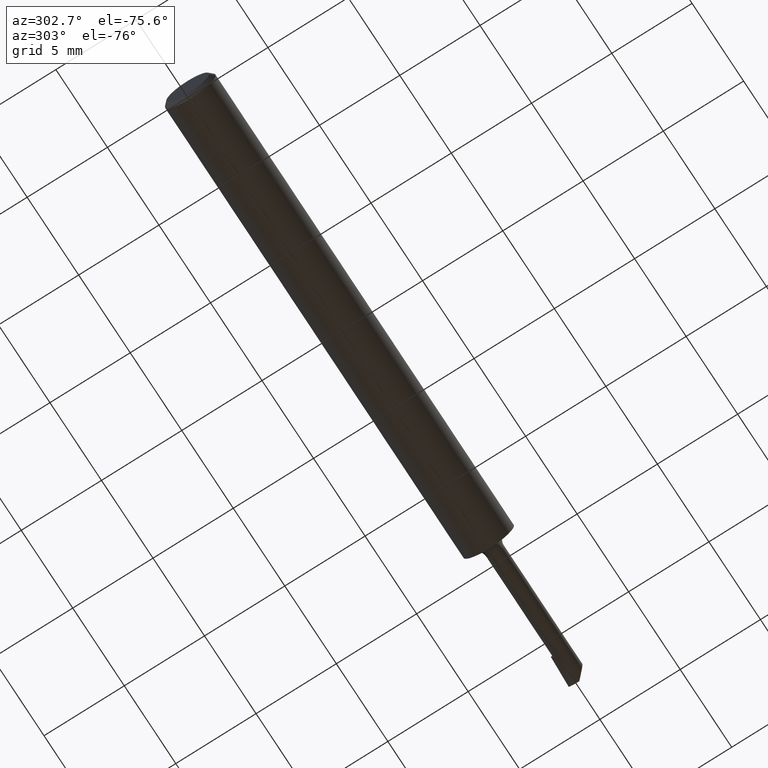
[diagram: clean part render]
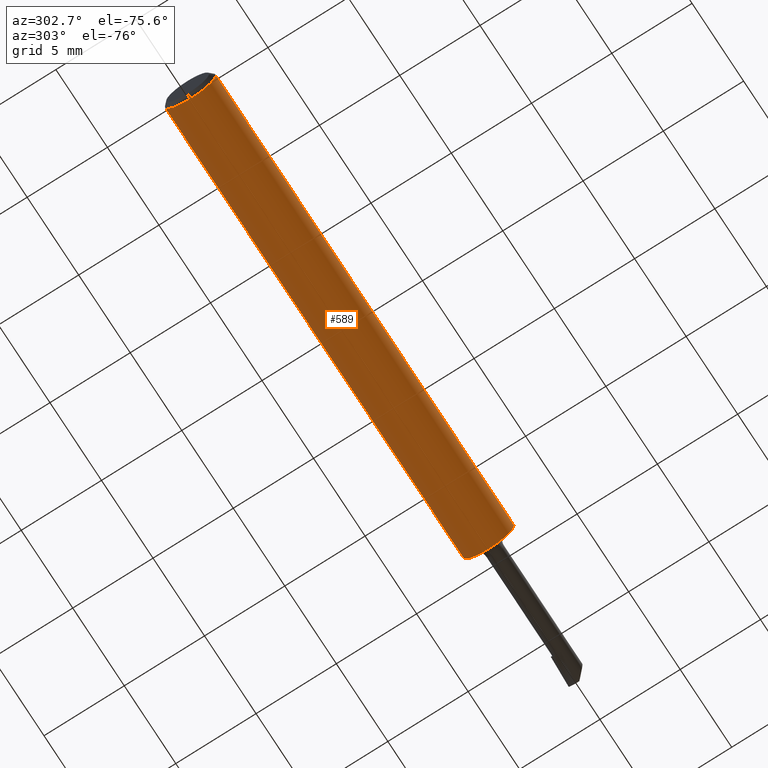
[diagram: same view with one face highlighted and labeled with its STEP entity id]
A machine part, auxiliary view. The second image highlights one B-rep face of the part: STEP entity #589.
In plain terms, the highlighted cylindrical surface (edge-blend (fillet) strip) has radius 1.5837 mm, axis along (-1, -0, -0).
Its self-contained STEP definition (entity closure, byte-faithful):
#14 = EDGE_CURVE ( 'NONE', #701, #187, #283, .T. ) ;
#22 = VERTEX_POINT ( 'NONE', #217 ) ;
#48 = ORIENTED_EDGE ( 'NONE', *, *, #188, .F. ) ;
#53 = EDGE_CURVE ( 'NONE', #657, #701, #80, .T. ) ;
#55 = DIRECTION ( 'NONE',  ( 1.000000000000000000, 0.000000000000000000, 0.000000000000000000 ) ) ;
#62 = EDGE_LOOP ( 'NONE', ( #498, #75, #257, #250, #48 ) ) ;
#69 = DIRECTION ( 'NONE',  ( -1.000000000000000000, -0.000000000000000000, -0.000000000000000000 ) ) ;
#75 = ORIENTED_EDGE ( 'NONE', *, *, #53, .F. ) ;
#80 = CIRCLE ( 'NONE', #182, 0.06234999999999997489 ) ;
#119 = DIRECTION ( 'NONE',  ( 1.000000000000000000, 0.000000000000000000, 0.000000000000000000 ) ) ;
#122 = EDGE_CURVE ( 'NONE', #22, #657, #550, .T. ) ;
#132 = VECTOR ( 'NONE', #232, 39.37007874015748143 ) ;
#139 = CYLINDRICAL_SURFACE ( 'NONE', #347, 0.06234999999999997489 ) ;
#154 = AXIS2_PLACEMENT_3D ( 'NONE', #454, #69, #271 ) ;
#182 = AXIS2_PLACEMENT_3D ( 'NONE', #667, #55, #802 ) ;
#187 = VERTEX_POINT ( 'NONE', #445 ) ;
#188 = EDGE_CURVE ( 'NONE', #187, #560, #473, .T. ) ;
#198 = CARTESIAN_POINT ( 'NONE',  ( 1.150000000000000577, -0.03386738844375219298, 0.05234999999999997988 ) ) ;
#217 = CARTESIAN_POINT ( 'NONE',  ( 0.01000000000000000021, -0.03386738844375219298, 0.05234999999999997988 ) ) ;
#232 = DIRECTION ( 'NONE',  ( -1.000000000000000000, -0.000000000000000000, -0.000000000000000000 ) ) ;
#243 = EDGE_CURVE ( 'NONE', #560, #22, #407, .T. ) ;
#250 = ORIENTED_EDGE ( 'NONE', *, *, #243, .F. ) ;
#257 = ORIENTED_EDGE ( 'NONE', *, *, #122, .F. ) ;
#268 = DIRECTION ( 'NONE',  ( 0.000000000000000000, 0.000000000000000000, 1.000000000000000000 ) ) ;
#271 = DIRECTION ( 'NONE',  ( 0.000000000000000000, 0.000000000000000000, 1.000000000000000000 ) ) ;
#283 = LINE ( 'NONE', #470, #132 ) ;
#321 = VECTOR ( 'NONE', #119, 39.37007874015748143 ) ;
#327 = CARTESIAN_POINT ( 'NONE',  ( 0.01000000000000000021, 0.000000000000000000, 0.000000000000000000 ) ) ;
#333 = CARTESIAN_POINT ( 'NONE',  ( 0.01000000000000000021, 0.000000000000000000, -0.06235000000000000264 ) ) ;
#347 = AXIS2_PLACEMENT_3D ( 'NONE', #500, #695, #686 ) ;
#371 = AXIS2_PLACEMENT_3D ( 'NONE', #327, #767, #268 ) ;
#377 = CARTESIAN_POINT ( 'NONE',  ( 0.000000000000000000, -0.03386738844375219298, 0.05234999999999997988 ) ) ;
#407 = CIRCLE ( 'NONE', #154, 0.06235000000000000264 ) ;
#445 = CARTESIAN_POINT ( 'NONE',  ( 0.01000000000000000021, 0.03386738844375217911, 0.05234999999999997988 ) ) ;
#454 = CARTESIAN_POINT ( 'NONE',  ( 0.01000000000000000021, 0.000000000000000000, 0.000000000000000000 ) ) ;
#470 = CARTESIAN_POINT ( 'NONE',  ( 0.000000000000000000, 0.03386738844375217911, 0.05234999999999997988 ) ) ;
#473 = CIRCLE ( 'NONE', #371, 0.06235000000000000264 ) ;
#498 = ORIENTED_EDGE ( 'NONE', *, *, #14, .F. ) ;
#500 = CARTESIAN_POINT ( 'NONE',  ( 0.000000000000000000, 0.000000000000000000, 0.000000000000000000 ) ) ;
#550 = LINE ( 'NONE', #377, #321 ) ;
#557 = FACE_OUTER_BOUND ( 'NONE', #62, .T. ) ;
#560 = VERTEX_POINT ( 'NONE', #333 ) ;
#589 = ADVANCED_FACE ( 'NONE', ( #557 ), #139, .T. ) ;
#648 = CARTESIAN_POINT ( 'NONE',  ( 1.150000000000000577, 0.03386738844375217911, 0.05234999999999997988 ) ) ;
#657 = VERTEX_POINT ( 'NONE', #198 ) ;
#667 = CARTESIAN_POINT ( 'NONE',  ( 1.150000000000000577, 0.000000000000000000, 0.000000000000000000 ) ) ;
#686 = DIRECTION ( 'NONE',  ( 0.000000000000000000, 0.000000000000000000, 1.000000000000000000 ) ) ;
#695 = DIRECTION ( 'NONE',  ( -1.000000000000000000, -0.000000000000000000, -0.000000000000000000 ) ) ;
#701 = VERTEX_POINT ( 'NONE', #648 ) ;
#767 = DIRECTION ( 'NONE',  ( -1.000000000000000000, -0.000000000000000000, -0.000000000000000000 ) ) ;
#802 = DIRECTION ( 'NONE',  ( 0.000000000000000000, 0.000000000000000000, -1.000000000000000000 ) ) ;